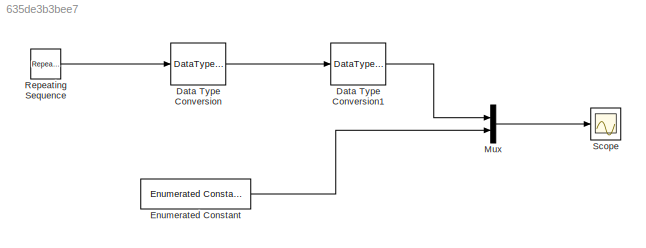
MODEL slx_635de3b3bee7
KIND model
CONFIG AbsTol = auto
CONFIG EnableMultiTasking = off
CONFIG FixedStep = 0.2
CONFIG MaxStep = auto
CONFIG MinStep = auto
CONFIG RelTol = 1e-3
CONFIG SampleTimeConstraint = Unconstrained
CONFIG Solver = FixedStepDiscrete
CONFIG SolverName = FixedStepDiscrete
CONFIG StartTime = 0.0
CONFIG StopTime = 10.0
BLOCK [DataTypeConversion] Data Type Conversion
  OutDataTypeStr = int32
  RndMeth = Floor
  SaturateOnIntegerOverflow = off
BLOCK [DataTypeConversion] Data Type Conversion1
  OutDataTypeStr = Enum: ErrorStatus
  RndMeth = Floor
  SaturateOnIntegerOverflow = off
BLOCK [Reference] Enumerated Constant  REF=simulink/Sources/Enumerated
Constant
  Ports = [0, 1]
  SourceBlock = simulink/Sources/Enumerated\nConstant
  SourceProductBaseCode = SL
  SourceProductName = Simulink
  SourceType = Enumerated Constant
BLOCK [Mux] Mux
  DisplayOption = bar
  Inputs = 2
  Ports = [2, 1]
BLOCK [Reference] Repeating Sequence  REF=simulink/Sources/Repeating
Sequence
  Ports = [0, 1]
  SourceBlock = simulink/Sources/Repeating\nSequence
  SourceProductBaseCode = SL
  SourceProductName = Simulink
  SourceType = Repeating table
BLOCK [Scope] Scope
  Floating = off
  NumInputPorts = 1
  Ports = [1]
  ScopeSpecificationString = Simulink.scopes.TimeScopeBlockCfg('CurrentConfiguration', extmgr.ConfigurationSet(extmgr.Configuration('Core','General UI',true),extmgr.Configuration('Core','Source UI',true),extmgr.Configuration('Sources','WiredSimulink',true),extmgr.Configuration('Visuals','Time Domain',true,'SerializedDisplays',{struct('MinYLimReal','-0.25','MaxYLimReal','2.25','YLabelReal','','MinYLimMag','0.00000','MaxYLimMag...<+1403ch>
LINE Data Type Conversion1:1 -> Mux:1
LINE Data Type Conversion:1 -> Data Type Conversion1:1
LINE Enumerated Constant:1 -> Mux:2
LINE Mux:1 -> Scope:1
LINE Repeating Sequence:1 -> Data Type Conversion:1
